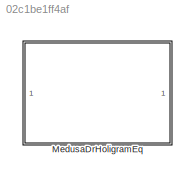
MODEL slx_02c1be1ff4af
KIND library
CONFIG AbsTol = auto
CONFIG EnableMultiTasking = off
CONFIG FixedStep = auto
CONFIG MaxStep = auto
CONFIG MinStep = auto
CONFIG RelTol = 1e-3
CONFIG SampleTimeConstraint = Unconstrained
CONFIG SolverName = VariableStepAuto
CONFIG StartTime = 0.0
CONFIG StopTime = 10.0
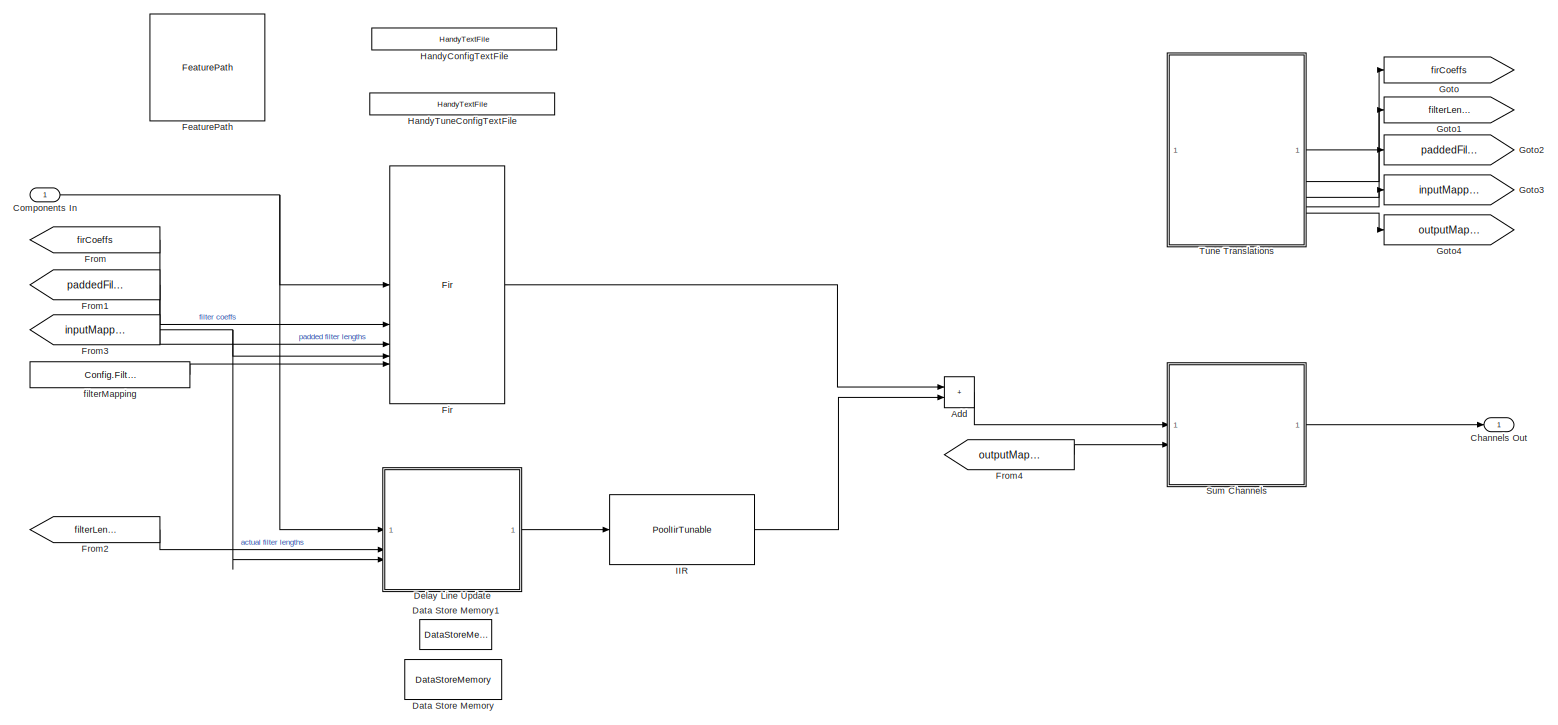
[diagram: MedusaDrHoligramEq - part 1/1, most of the canvas]
BLOCK [SubSystem] MedusaDrHoligramEq
BLOCK [Sum] MedusaDrHoligramEq/Add
  IconShape = rectangular
  Priority = 2
BLOCK [Outport] MedusaDrHoligramEq/Channels Out
  VectorParamsAs1DForOutWhenUnconnected = off
BLOCK [Inport] MedusaDrHoligramEq/Components In
BLOCK [DataStoreMemory] MedusaDrHoligramEq/Data Store Memory
  DataStoreName = states
  InitialValue = Config.DelayStateInitVal
  OutDataTypeStr = single
  ReadBeforeWriteMsg = warning
  ShowAdditionalParam = off
  SignalType = real
  WriteAfterReadMsg = warning
  WriteAfterWriteMsg = warning
BLOCK [DataStoreMemory] MedusaDrHoligramEq/Data Store Memory1
  DataStoreName = stateIndex
  OutDataTypeStr = int32
  ReadBeforeWriteMsg = warning
  ShowAdditionalParam = off
  SignalType = real
  WriteAfterReadMsg = warning
  WriteAfterWriteMsg = warning
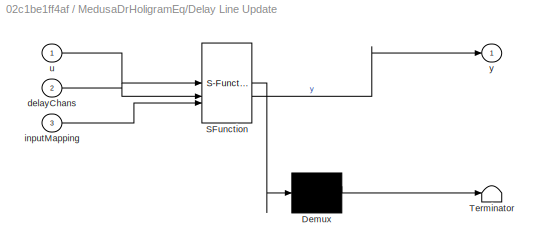
BLOCK [SubSystem] MedusaDrHoligramEq/Delay Line Update
  ErrorFcn = Stateflow.Translate.translate
  PermitHierarchicalResolution = ExplicitOnly
  SFBlockType = MATLAB Function
  TreatAsAtomicUnit = on
BLOCK [Demux] MedusaDrHoligramEq/Delay Line Update/ Demux 
  Outputs = 1
BLOCK [S-Function] MedusaDrHoligramEq/Delay Line Update/ SFunction 
  EnableBusSupport = off
  FunctionName = sf_sfun
  Parameters = fixedDelayLength
  PortCounts = [3 2]
  SFcnIsStateOwnerBlock = off
  SFunctionDeploymentMode = off
  Tag = Stateflow S-Function 2
BLOCK [Terminator] MedusaDrHoligramEq/Delay Line Update/ Terminator 
BLOCK [Inport] MedusaDrHoligramEq/Delay Line Update/delayChans
  Port = 2
BLOCK [Inport] MedusaDrHoligramEq/Delay Line Update/inputMapping
  Port = 3
BLOCK [Inport] MedusaDrHoligramEq/Delay Line Update/u
BLOCK [Outport] MedusaDrHoligramEq/Delay Line Update/y
  VectorParamsAs1DForOutWhenUnconnected = off
BLOCK [Reference] MedusaDrHoligramEq/FeaturePath  REF=FeaturePath/FeaturePath
  SourceBlock = FeaturePath/FeaturePath
  SourceProductName = Bose Talaria
  SourceType = Talaria Feature Path
BLOCK [Reference] MedusaDrHoligramEq/Fir  REF=FirGeneric/Fir
  SourceBlock = FirGeneric/Fir
  SourceProductName = Bose Blocklib
  SourceType = Blocklib Fir
BLOCK [From] MedusaDrHoligramEq/From
  GotoTag = firCoeffs
BLOCK [From] MedusaDrHoligramEq/From1
  GotoTag = paddedFilterLengths
BLOCK [From] MedusaDrHoligramEq/From2
  GotoTag = filterLengths
BLOCK [From] MedusaDrHoligramEq/From3
  GotoTag = inputMapping
BLOCK [From] MedusaDrHoligramEq/From4
  GotoTag = outputMapping
BLOCK [Goto] MedusaDrHoligramEq/Goto
  GotoTag = firCoeffs
BLOCK [Goto] MedusaDrHoligramEq/Goto1
  GotoTag = filterLengths
BLOCK [Goto] MedusaDrHoligramEq/Goto2
  GotoTag = paddedFilterLengths
BLOCK [Goto] MedusaDrHoligramEq/Goto3
  GotoTag = inputMapping
BLOCK [Goto] MedusaDrHoligramEq/Goto4
  GotoTag = outputMapping
BLOCK [Reference] MedusaDrHoligramEq/HandyConfigTextFile  REF=HandyTextFile/HandyTextFile
  SourceBlock = HandyTextFile/HandyTextFile
  SourceProductName = Bose Talaria
  SourceType = Talaria Handy Text File
BLOCK [Reference] MedusaDrHoligramEq/HandyTuneConfigTextFile  REF=HandyTextFile/HandyTextFile
  SourceBlock = HandyTextFile/HandyTextFile
  SourceProductName = Bose Talaria
  SourceType = Talaria Handy Text File
BLOCK [Reference] MedusaDrHoligramEq/IIR  REF=PoolIir/PoolIirTunable
  SourceBlock = PoolIir/PoolIirTunable
  SourceType = Bose Pool IIR Tunable
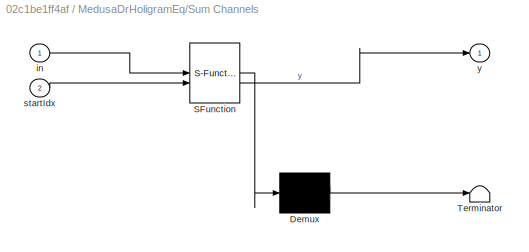
BLOCK [SubSystem] MedusaDrHoligramEq/Sum Channels
  ErrorFcn = Stateflow.Translate.translate
  PermitHierarchicalResolution = ExplicitOnly
  Priority = 3
  SFBlockType = MATLAB Function
  TreatAsAtomicUnit = on
BLOCK [Demux] MedusaDrHoligramEq/Sum Channels/ Demux 
  Outputs = 1
BLOCK [S-Function] MedusaDrHoligramEq/Sum Channels/ SFunction 
  EnableBusSupport = off
  FunctionName = sf_sfun
  PortCounts = [2 2]
  SFcnIsStateOwnerBlock = off
  SFunctionDeploymentMode = off
  Tag = Stateflow S-Function 5
BLOCK [Terminator] MedusaDrHoligramEq/Sum Channels/ Terminator 
BLOCK [Inport] MedusaDrHoligramEq/Sum Channels/in
BLOCK [Inport] MedusaDrHoligramEq/Sum Channels/startIdx
  Port = 2
BLOCK [Outport] MedusaDrHoligramEq/Sum Channels/y
  VectorParamsAs1DForOutWhenUnconnected = off
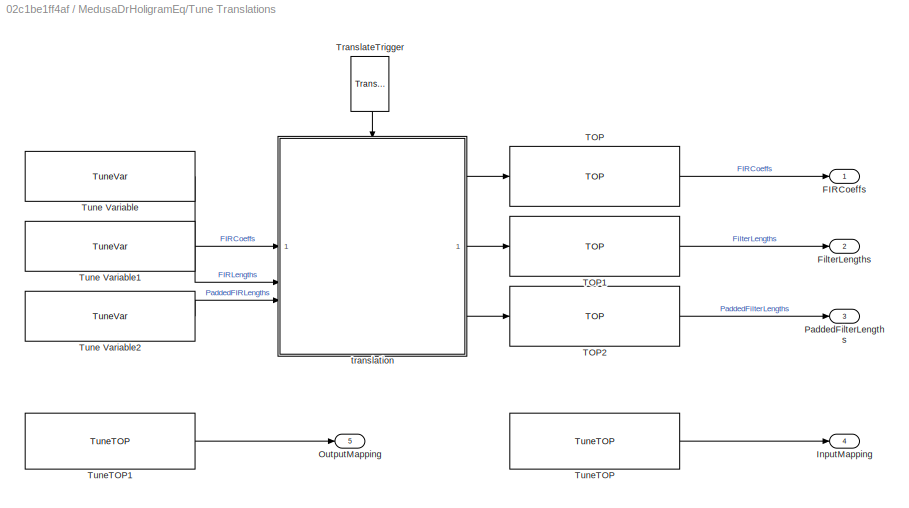
BLOCK [SubSystem] MedusaDrHoligramEq/Tune Translations
BLOCK [Outport] MedusaDrHoligramEq/Tune Translations/FIRCoeffs
BLOCK [Outport] MedusaDrHoligramEq/Tune Translations/FilterLengths
  Port = 2
BLOCK [Outport] MedusaDrHoligramEq/Tune Translations/InputMapping
  Port = 4
BLOCK [Outport] MedusaDrHoligramEq/Tune Translations/OutputMapping
  Port = 5
BLOCK [Outport] MedusaDrHoligramEq/Tune Translations/PaddedFilterLengths
  Port = 3
BLOCK [Reference] MedusaDrHoligramEq/Tune Translations/TOP  REF=TOP/TOP
  SourceBlock = TOP/TOP
  SourceProductName = Bose Talaria
  SourceType = Talaria Target Overlay Parameter
BLOCK [Reference] MedusaDrHoligramEq/Tune Translations/TOP1  REF=TOP/TOP
  SourceBlock = TOP/TOP
  SourceProductName = Bose Talaria
  SourceType = Talaria Target Overlay Parameter
BLOCK [Reference] MedusaDrHoligramEq/Tune Translations/TOP2  REF=TOP/TOP
  SourceBlock = TOP/TOP
  SourceProductName = Bose Talaria
  SourceType = Talaria Target Overlay Parameter
BLOCK [Reference] MedusaDrHoligramEq/Tune Translations/TranslateTrigger  REF=TuneVar/TranslateTrigger
  NameLocation = left
  SourceBlock = TuneVar/TranslateTrigger
  SourceProductName = Bose Talaria
  SourceType = Talaria Translate Trigger
BLOCK [Reference] MedusaDrHoligramEq/Tune Translations/Tune Variable  REF=TuneVar/TuneVar
  SourceBlock = TuneVar/TuneVar
  SourceProductName = Bose Talaria
  SourceType = Talaria Tune Variable
BLOCK [Reference] MedusaDrHoligramEq/Tune Translations/Tune Variable1  REF=TuneVar/TuneVar
  SourceBlock = TuneVar/TuneVar
  SourceProductName = Bose Talaria
  SourceType = Talaria Tune Variable
BLOCK [Reference] MedusaDrHoligramEq/Tune Translations/Tune Variable2  REF=TuneVar/TuneVar
  SourceBlock = TuneVar/TuneVar
  SourceProductName = Bose Talaria
  SourceType = Talaria Tune Variable
BLOCK [Reference] MedusaDrHoligramEq/Tune Translations/TuneTOP  REF=TuneVar/TuneTOP
  SourceBlock = TuneVar/TuneTOP
  SourceProductName = Bose Talaria
  SourceType = Talaria Trivial Tune TOP
BLOCK [Reference] MedusaDrHoligramEq/Tune Translations/TuneTOP1  REF=TuneVar/TuneTOP
  SourceBlock = TuneVar/TuneTOP
  SourceProductName = Bose Talaria
  SourceType = Talaria Trivial Tune TOP
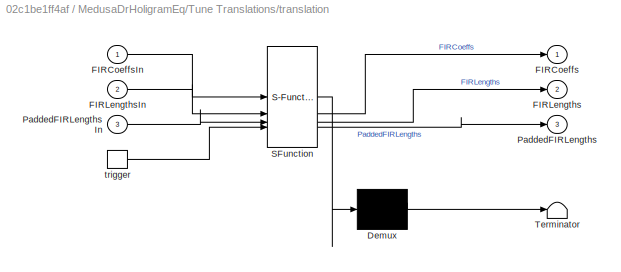
BLOCK [SubSystem] MedusaDrHoligramEq/Tune Translations/translation
  ErrorFcn = Stateflow.Translate.translate
  PermitHierarchicalResolution = ExplicitOnly
  SFBlockType = MATLAB Function
  TreatAsAtomicUnit = on
BLOCK [Demux] MedusaDrHoligramEq/Tune Translations/translation/ Demux 
  Outputs = 1
BLOCK [S-Function] MedusaDrHoligramEq/Tune Translations/translation/ SFunction 
  EnableBusSupport = off
  FunctionName = sf_sfun
  PortCounts = [4 4]
  SFcnIsStateOwnerBlock = off
  SFunctionDeploymentMode = off
  Tag = Stateflow S-Function 8
BLOCK [Terminator] MedusaDrHoligramEq/Tune Translations/translation/ Terminator 
BLOCK [Outport] MedusaDrHoligramEq/Tune Translations/translation/FIRCoeffs
  VectorParamsAs1DForOutWhenUnconnected = off
BLOCK [Inport] MedusaDrHoligramEq/Tune Translations/translation/FIRCoeffsIn
BLOCK [Outport] MedusaDrHoligramEq/Tune Translations/translation/FIRLengths
  Port = 2
  VectorParamsAs1DForOutWhenUnconnected = off
BLOCK [Inport] MedusaDrHoligramEq/Tune Translations/translation/FIRLengthsIn
  Port = 2
BLOCK [Outport] MedusaDrHoligramEq/Tune Translations/translation/PaddedFIRLengths
  Port = 3
  VectorParamsAs1DForOutWhenUnconnected = off
BLOCK [Inport] MedusaDrHoligramEq/Tune Translations/translation/PaddedFIRLengthsIn
  Port = 3
BLOCK [TriggerPort] MedusaDrHoligramEq/Tune Translations/translation/trigger
  ShowOutputPort = on
  StatesWhenEnabling = held
  TriggerType = function-call
  VariantControl = Variant
BLOCK [Constant] MedusaDrHoligramEq/filterMapping
  OutDataTypeStr = uint32
  Value = Config.FilterMapping
  VectorParams1D = off
CHART MedusaDrHoligramEq/Delay Line Update states=1 transitions=1
  STATE_LABEL 'eML_blk_kernel()'
  STATE_LABEL "SCRIPT:\nfunction y = delayLineUpdate(u, delayChans, inputMapping, fixedDelayLength)\n\n% Note: This block only reads 'states' to get the delayed samples. A\n% separate function is responsible for writing to 'states' to update the \n% delay line Data Store Memory. Thus it is important to ensure all DSM  \n% write happens before DSM read.\n%\n% This is different from pooldelay, as the delay for ALL channel...<+1059ch>"
CHART MedusaDrHoligramEq/Sum Channels states=1 transitions=1
  STATE_LABEL 'eML_blk_kernel()'
  STATE_LABEL 'SCRIPT:\nfunction y = sum_channels(in, startIdx)\n[frame_size, ~] = size(in);\n[num_output, ~] = size(startIdx);\n\ny = coder.nullcopy(single(zeros(frame_size, num_output)));\nfor iter = 1:num_output-1\n    start_idx = startIdx(iter);\n    end_idx = startIdx(iter+1)-1;\n    y(:,iter) = sum(in(:,start_idx+1:end_idx+1),2);\nend\nstart_idx = startIdx(end);\ny(:,end) = sum(in(:,start_idx+1:end),2);\n'
CHART MedusaDrHoligramEq/Tune Translations/translation states=1 transitions=1
  STATE_LABEL 'eML_blk_kernel()'
  STATE_LABEL 'SCRIPT:\nfunction [FIRCoeffs, FIRLengths, PaddedFIRLengths] = fcn(FIRCoeffsIn, FIRLengthsIn, PaddedFIRLengthsIn)\n\nFIRCoeffs = FIRCoeffsIn.Value;\nFIRLengths = FIRLengthsIn.Value;\nPaddedFIRLengths = PaddedFIRLengthsIn.Value;'
CHART  states=0 transitions=0
CHART  states=0 transitions=0
CHART  states=0 transitions=0
